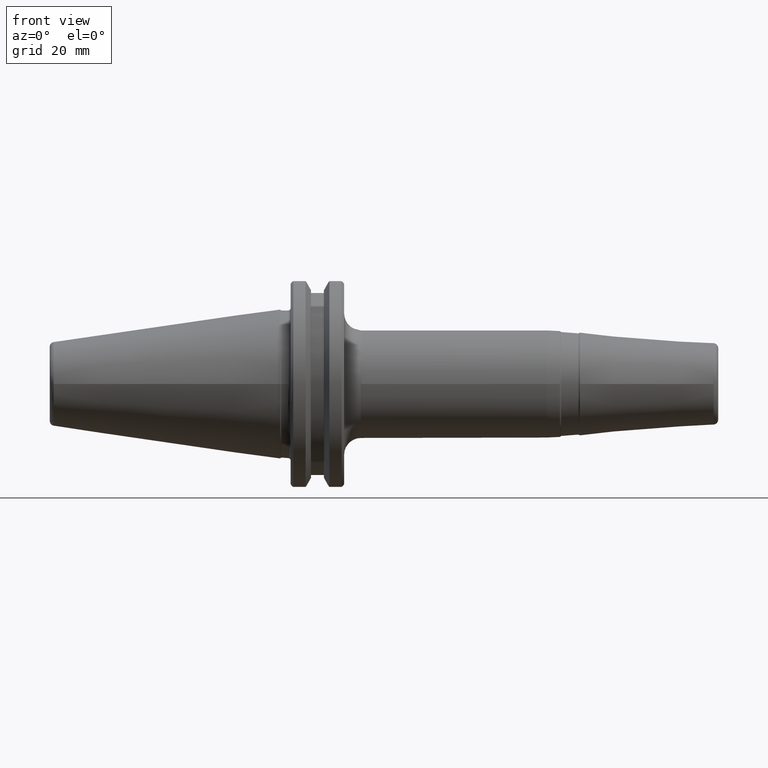
[diagram: clean part render]
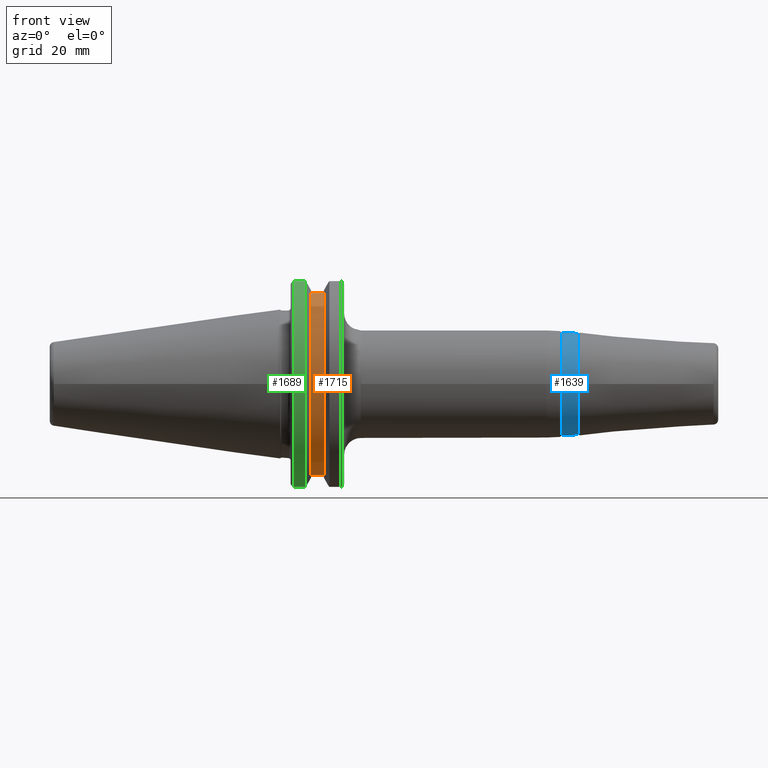
[diagram: same view with three faces highlighted in distinct colors, each labeled with its STEP entity id]
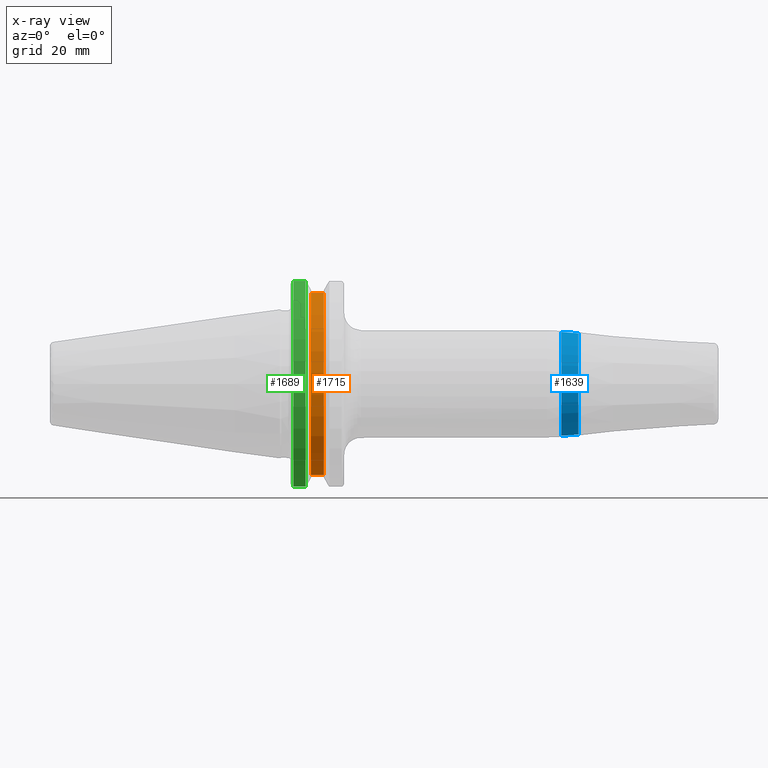
[diagram: x-ray of the same camera — body ghosted, the three highlighted faces saturated]
A machine part, front view with three faces highlighted in distinct colors.
The next image is the same camera in x-ray (body ghosted, the three faces saturated) — at least one of them is partly hidden behind the body in this view.
Their STEP definitions:

[orange] entity #1715 — the highlighted cylindrical surface (partial cylindrical patch) has radius 28.1813 mm, axis along (-1, 0, 0).
#173=LINE('',#2842,#276);
#211=LINE('',#3050,#314);
#276=VECTOR('',#2146,10.);
#314=VECTOR('',#2258,10.);
#355=CYLINDRICAL_SURFACE('',#1918,28.181300000011);
#436=FACE_OUTER_BOUND('',#529,.T.);
#529=EDGE_LOOP('',(#1556,#1557,#1558,#1559));
#631=CIRCLE('',#1917,28.1813000000106);
#632=CIRCLE('',#1919,28.1813000000115);
#721=VERTEX_POINT('',#2839);
#722=VERTEX_POINT('',#2841);
#779=VERTEX_POINT('',#3047);
#780=VERTEX_POINT('',#3049);
#925=EDGE_CURVE('',#722,#721,#173,.T.);
#1004=EDGE_CURVE('',#780,#779,#211,.T.);
#1058=EDGE_CURVE('',#722,#779,#631,.T.);
#1059=EDGE_CURVE('',#721,#780,#632,.T.);
#1556=ORIENTED_EDGE('',*,*,#925,.T.);
#1557=ORIENTED_EDGE('',*,*,#1059,.T.);
#1558=ORIENTED_EDGE('',*,*,#1004,.T.);
#1559=ORIENTED_EDGE('',*,*,#1058,.F.);
#1715=ADVANCED_FACE('',(#436),#355,.T.);
#1917=AXIS2_PLACEMENT_3D('',#3179,#2386,#2387);
#1918=AXIS2_PLACEMENT_3D('',#3180,#2388,#2389);
#1919=AXIS2_PLACEMENT_3D('',#3181,#2390,#2391);
#2146=DIRECTION('',(1.,-2.43677033581203E-13,0.));
#2258=DIRECTION('',(-1.,2.43677033581203E-13,0.));
#2386=DIRECTION('center_axis',(-1.,2.43677033581203E-13,0.));
#2387=DIRECTION('ref_axis',(2.43662033281696E-13,1.,0.));
#2388=DIRECTION('center_axis',(-1.,2.43677033581203E-13,0.));
#2389=DIRECTION('ref_axis',(-2.43692033880709E-13,-1.,1.45324792451373E-14));
#2390=DIRECTION('center_axis',(-1.,2.43677033581203E-13,0.));
#2391=DIRECTION('ref_axis',(2.43662033281696E-13,1.,0.));
#2839=CARTESIAN_POINT('',(13.0517899999991,-8.1280000000115,-26.9837226062426));
#2841=CARTESIAN_POINT('',(9.21638999999914,-8.12800000001056,-26.9837226062416));
#2842=CARTESIAN_POINT('',(11.1340899999991,-8.12800000001103,-26.9837226062421));
#3047=CARTESIAN_POINT('',(9.21638999999914,-8.12800000001071,26.9837226062416));
#3049=CARTESIAN_POINT('',(13.0517899999991,-8.12800000001071,26.9837226062428));
#3050=CARTESIAN_POINT('',(11.1340899999991,-8.12800000001071,26.9837226062422));
#3179=CARTESIAN_POINT('Origin',(9.21639000000112,-1.05628243279462E-11,
0.));
#3180=CARTESIAN_POINT('Origin',(11.1340900000011,-1.10301237752448E-11,
0.));
#3181=CARTESIAN_POINT('Origin',(13.0517900000011,-1.14974232225435E-11,
0.));

[blue] entity #1639 — the highlighted conical surface has half-angle 4.5 deg.
#46=B_SPLINE_CURVE_WITH_KNOTS('',3,(#2450,#2451,#2452,#2453,#2454,#2455,
#2456,#2457,#2458,#2459),.UNSPECIFIED.,.F.,.F.,(4,2,2,2,4),(0.,0.0933714361199498,
0.1867428722399,0.28022617105338,0.37370946986686),.UNSPECIFIED.);
#47=B_SPLINE_CURVE_WITH_KNOTS('',3,(#2460,#2461,#2462,#2463,#2464,#2465,
#2466,#2467,#2468,#2469,#2470,#2471,#2472,#2473,#2474,#2475,#2476,#2477,
#2478,#2479,#2480,#2481,#2482,#2483,#2484,#2485),.UNSPECIFIED.,.F.,.F.,
(4,2,2,2,2,2,2,2,2,2,2,2,4),(0.37370946986686,0.46719276868034,0.560676067493821,
0.654047503613771,0.74741893973372,0.843136017949871,0.938853096166023,
1.03429111211838,1.12972912807074,1.2251671440231,1.32060515997546,1.41632223819162,
1.51203931640777),.UNSPECIFIED.);
#62=CONICAL_SURFACE('',#1754,15.209658097515,0.078539816339745);
#87=FACE_BOUND('',#444,.T.);
#138=LINE('',#2443,#241);
#241=VECTOR('',#1969,15.209658097515);
#360=FACE_OUTER_BOUND('',#443,.T.);
#443=EDGE_LOOP('',(#1089,#1090,#1091,#1092,#1093,#1094));
#444=EDGE_LOOP('',(#1095,#1096));
#544=CIRCLE('',#1755,15.0097557621805);
#545=CIRCLE('',#1756,15.4095604328495);
#546=CIRCLE('',#1757,15.4095604328495);
#547=CIRCLE('',#1758,15.0097557621805);
#651=VERTEX_POINT('',#2439);
#652=VERTEX_POINT('',#2440);
#653=VERTEX_POINT('',#2442);
#654=VERTEX_POINT('',#2444);
#655=VERTEX_POINT('',#2448);
#656=VERTEX_POINT('',#2449);
#829=EDGE_CURVE('',#651,#652,#544,.T.);
#830=EDGE_CURVE('',#652,#653,#138,.T.);
#831=EDGE_CURVE('',#654,#653,#545,.T.);
#832=EDGE_CURVE('',#653,#654,#546,.T.);
#833=EDGE_CURVE('',#652,#651,#547,.T.);
#834=EDGE_CURVE('',#655,#656,#46,.T.);
#835=EDGE_CURVE('',#656,#655,#47,.T.);
#1089=ORIENTED_EDGE('',*,*,#829,.T.);
#1090=ORIENTED_EDGE('',*,*,#830,.T.);
#1091=ORIENTED_EDGE('',*,*,#831,.F.);
#1092=ORIENTED_EDGE('',*,*,#832,.F.);
#1093=ORIENTED_EDGE('',*,*,#830,.F.);
#1094=ORIENTED_EDGE('',*,*,#833,.T.);
#1095=ORIENTED_EDGE('',*,*,#834,.F.);
#1096=ORIENTED_EDGE('',*,*,#835,.F.);
#1639=ADVANCED_FACE('',(#360,#87),#62,.T.);
#1754=AXIS2_PLACEMENT_3D('',#2438,#1965,#1966);
#1755=AXIS2_PLACEMENT_3D('',#2441,#1967,#1968);
#1756=AXIS2_PLACEMENT_3D('',#2445,#1970,#1971);
#1757=AXIS2_PLACEMENT_3D('',#2446,#1972,#1973);
#1758=AXIS2_PLACEMENT_3D('',#2447,#1974,#1975);
#1965=DIRECTION('center_axis',(-1.,0.,0.));
#1966=DIRECTION('ref_axis',(0.,0.,-1.));
#1967=DIRECTION('center_axis',(-1.,0.,0.));
#1968=DIRECTION('ref_axis',(0.,0.,1.));
#1969=DIRECTION('',(-0.996917333733128,9.60846804471013E-18,0.0784590957278451));
#1970=DIRECTION('center_axis',(-1.,0.,0.));
#1971=DIRECTION('ref_axis',(0.,0.,1.));
#1972=DIRECTION('center_axis',(-1.,0.,0.));
#1973=DIRECTION('ref_axis',(0.,0.,1.));
#1974=DIRECTION('center_axis',(-1.,0.,0.));
#1975=DIRECTION('ref_axis',(0.,0.,1.));
#2438=CARTESIAN_POINT('Origin',(85.9800713896852,0.,0.));
#2439=CARTESIAN_POINT('',(88.5200713896852,0.,-15.0097557621805));
#2440=CARTESIAN_POINT('',(88.5200713896852,1.83816493501378E-15,15.0097557621805));
#2441=CARTESIAN_POINT('Origin',(88.5200713896852,0.,0.));
#2442=CARTESIAN_POINT('',(83.4400713896852,1.88712688603569E-15,15.4095604328495));
#2443=CARTESIAN_POINT('',(85.9800713896852,1.86264591052473E-15,15.209658097515));
#2444=CARTESIAN_POINT('',(83.4400713896852,0.,-15.4095604328495));
#2445=CARTESIAN_POINT('Origin',(83.4400713896852,0.,0.));
#2446=CARTESIAN_POINT('Origin',(83.4400713896852,0.,0.));
#2447=CARTESIAN_POINT('Origin',(88.5200713896852,0.,0.));
#2448=CARTESIAN_POINT('',(86.0323436853638,14.9986539356741,2.49979076844785));
#2449=CARTESIAN_POINT('',(88.5,15.011335414807,8.97804367433338E-17));
#2450=CARTESIAN_POINT('Ctrl Pts',(86.0323436853638,14.9986539356741,2.49979076844785));
#2451=CARTESIAN_POINT('Ctrl Pts',(86.3426223625088,14.9745667311801,2.49577621009548));
#2452=CARTESIAN_POINT('Ctrl Pts',(86.6735848675449,14.9595126681207,2.43012424500887));
#2453=CARTESIAN_POINT('Ctrl Pts',(87.2819079713696,14.9508445139356,2.17161974580092));
#2454=CARTESIAN_POINT('Ctrl Pts',(87.5592588675568,14.9566613663468,1.97876377396545));
#2455=CARTESIAN_POINT('Ctrl Pts',(87.9969525185,14.9739781918896,1.53597102635864));
#2456=CARTESIAN_POINT('Ctrl Pts',(88.1866501728731,14.9865542184207,1.25621080776421));
#2457=CARTESIAN_POINT('Ctrl Pts',(88.4381787460537,15.0055049497026,0.644041141493512));
#2458=CARTESIAN_POINT('Ctrl Pts',(88.5,15.011335414807,0.311610996044934));
#2459=CARTESIAN_POINT('Ctrl Pts',(88.5,15.011335414807,-2.77555756156289E-16));
#2460=CARTESIAN_POINT('Ctrl Pts',(88.5,15.011335414807,6.24500451351651E-16));
#2461=CARTESIAN_POINT('Ctrl Pts',(88.5,15.011335414807,-0.311610996044934));
#2462=CARTESIAN_POINT('Ctrl Pts',(88.4381787460537,15.0055049497025,-0.644041141493512));
#2463=CARTESIAN_POINT('Ctrl Pts',(88.1866501728731,14.9865542184207,-1.25621080776421));
#2464=CARTESIAN_POINT('Ctrl Pts',(87.9969525185,14.9739781918896,-1.53597102635864));
#2465=CARTESIAN_POINT('Ctrl Pts',(87.5592588675568,14.9566613663468,-1.97876377396545));
#2466=CARTESIAN_POINT('Ctrl Pts',(87.2819079713696,14.9508445139356,-2.17161974580092));
#2467=CARTESIAN_POINT('Ctrl Pts',(86.6735848675449,14.9595126681207,-2.43012424500887));
#2468=CARTESIAN_POINT('Ctrl Pts',(86.3426223625088,14.9745667311801,-2.49577621009548));
#2469=CARTESIAN_POINT('Ctrl Pts',(85.7142703040038,15.0233462498589,-2.50390617902506));
#2470=CARTESIAN_POINT('Ctrl Pts',(85.3756164733043,15.0607867005373,-2.4439525813492));
#2471=CARTESIAN_POINT('Ctrl Pts',(84.752845262119,15.1489553381093,-2.19257031023947));
#2472=CARTESIAN_POINT('Ctrl Pts',(84.4686239803346,15.199093953178,-2.00119261589901));
#2473=CARTESIAN_POINT('Ctrl Pts',(84.0194427546029,15.2864403974815,-1.5577855507625));
#2474=CARTESIAN_POINT('Ctrl Pts',(83.824179803229,15.3294458637561,-1.27620891524419));
#2475=CARTESIAN_POINT('Ctrl Pts',(83.5644268150738,15.3889229962754,-0.656419108778862));
#2476=CARTESIAN_POINT('Ctrl Pts',(83.5,15.4048439489301,-0.318126719841201));
#2477=CARTESIAN_POINT('Ctrl Pts',(83.5,15.4048439489301,0.3181267198412));
#2478=CARTESIAN_POINT('Ctrl Pts',(83.5644268150738,15.3889229962754,0.65641910877886));
#2479=CARTESIAN_POINT('Ctrl Pts',(83.824179803229,15.3294458637561,1.27620891524419));
#2480=CARTESIAN_POINT('Ctrl Pts',(84.0194427546029,15.2864403974815,1.5577855507625));
#2481=CARTESIAN_POINT('Ctrl Pts',(84.4686239803346,15.199093953178,2.00119261589901));
#2482=CARTESIAN_POINT('Ctrl Pts',(84.752845262119,15.1489553381093,2.19257031023947));
#2483=CARTESIAN_POINT('Ctrl Pts',(85.3756164733043,15.0607867005373,2.4439525813492));
#2484=CARTESIAN_POINT('Ctrl Pts',(85.7142703040038,15.0233462498589,2.50390617902506));
#2485=CARTESIAN_POINT('Ctrl Pts',(86.0323436853638,14.9986539356741,2.49979076844785));

[green] entity #1689 — the highlighted cylindrical surface (partial cylindrical patch) has radius 31.75 mm, axis along (1, 0, 0).
#218=LINE('',#3075,#321);
#219=LINE('',#3083,#322);
#321=VECTOR('',#2273,10.);
#322=VECTOR('',#2278,10.);
#349=CYLINDRICAL_SURFACE('',#1868,31.75);
#410=FACE_OUTER_BOUND('',#501,.T.);
#501=EDGE_LOOP('',(#1414,#1415,#1416,#1417));
#608=CIRCLE('',#1869,31.75);
#609=CIRCLE('',#1870,31.75);
#784=VERTEX_POINT('',#3070);
#785=VERTEX_POINT('',#3074);
#786=VERTEX_POINT('',#3080);
#787=VERTEX_POINT('',#3082);
#1014=EDGE_CURVE('',#784,#785,#218,.T.);
#1016=EDGE_CURVE('',#786,#784,#608,.T.);
#1017=EDGE_CURVE('',#787,#786,#219,.T.);
#1018=EDGE_CURVE('',#787,#785,#609,.T.);
#1414=ORIENTED_EDGE('',*,*,#1014,.F.);
#1415=ORIENTED_EDGE('',*,*,#1016,.F.);
#1416=ORIENTED_EDGE('',*,*,#1017,.F.);
#1417=ORIENTED_EDGE('',*,*,#1018,.T.);
#1689=ADVANCED_FACE('',(#410),#349,.T.);
#1868=AXIS2_PLACEMENT_3D('',#3079,#2274,#2275);
#1869=AXIS2_PLACEMENT_3D('',#3081,#2276,#2277);
#1870=AXIS2_PLACEMENT_3D('',#3084,#2279,#2280);
#2273=DIRECTION('',(1.,0.,0.));
#2274=DIRECTION('center_axis',(1.,0.,0.));
#2275=DIRECTION('ref_axis',(2.43677033581202E-13,-1.,2.72119064807686E-14));
#2276=DIRECTION('center_axis',(-1.,0.,0.));
#2277=DIRECTION('ref_axis',(-2.43677033581202E-13,-1.,0.));
#2278=DIRECTION('',(-1.,0.,0.));
#2279=DIRECTION('center_axis',(-1.,0.,0.));
#2280=DIRECTION('ref_axis',(2.43677033581202E-13,1.,0.));
#3070=CARTESIAN_POINT('',(3.93699999999226,-8.74009191268323,30.5233237600011));
#3074=CARTESIAN_POINT('',(7.60796364544296,-8.74009191268323,30.5233237600011));
#3075=CARTESIAN_POINT('',(11.1125,-8.74009191268323,30.5233237600011));
#3079=CARTESIAN_POINT('Origin',(11.1125,0.,0.));
#3080=CARTESIAN_POINT('',(3.93699999999226,-8.74009191268487,-30.5233237600007));
#3081=CARTESIAN_POINT('Origin',(3.93699999999226,0.,0.));
#3082=CARTESIAN_POINT('',(7.60796364544296,-8.74009191268487,-30.5233237600007));
#3083=CARTESIAN_POINT('',(11.1125,-8.74009191268488,-30.5233237600007));
#3084=CARTESIAN_POINT('Origin',(7.60796364544296,0.,0.));